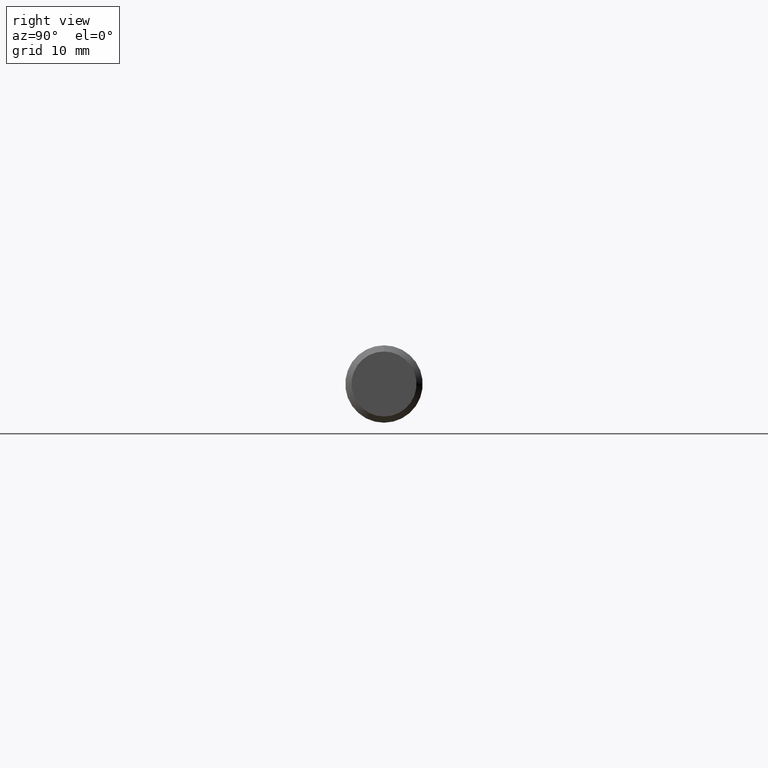
[diagram: clean part render]
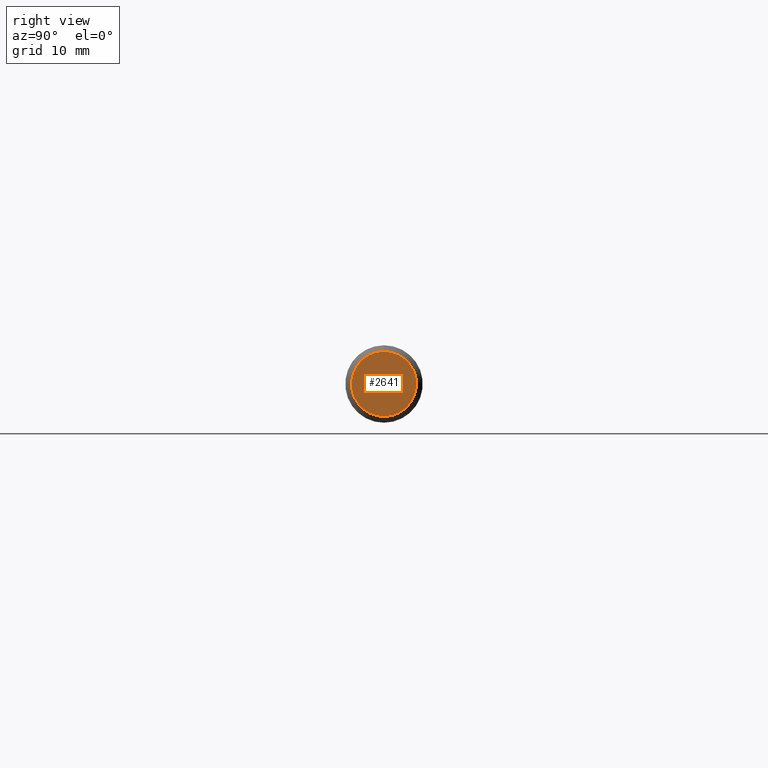
[diagram: same view with one face highlighted and labeled with its STEP entity id]
A machine part, right view. The second image highlights one B-rep face of the part: STEP entity #2641.
In plain terms, the highlighted planar face has unit normal (1, 0, 0).
Its self-contained STEP definition (entity closure, byte-faithful):
#41 = CARTESIAN_POINT ( 'NONE',  ( 1.999999999999999778, 2.110678758330449273E-17, -0.1573499999999976862 ) ) ;
#150 = CARTESIAN_POINT ( 'NONE',  ( 1.999999999999999778, 0.0000000000000000000, 0.1573499999999976862 ) ) ;
#165 = CARTESIAN_POINT ( 'NONE',  ( 1.999999999999999778, 0.0000000000000000000, 0.0000000000000000000 ) ) ;
#174 = CIRCLE ( 'NONE', #1778, 0.1573499999999976862 ) ;
#621 = CARTESIAN_POINT ( 'NONE',  ( 1.999999999999999778, 0.0000000000000000000, 0.0000000000000000000 ) ) ;
#635 = DIRECTION ( 'NONE',  ( 1.000000000000000000, 0.0000000000000000000, 0.0000000000000000000 ) ) ;
#793 = AXIS2_PLACEMENT_3D ( 'NONE', #2126, #635, #845 ) ;
#845 = DIRECTION ( 'NONE',  ( 0.0000000000000000000, 0.0000000000000000000, -1.000000000000000000 ) ) ;
#958 = ORIENTED_EDGE ( 'NONE', *, *, #1607, .T. ) ;
#1576 = EDGE_LOOP ( 'NONE', ( #2362, #958 ) ) ;
#1607 = EDGE_CURVE ( 'NONE', #1826, #1677, #174, .T. ) ;
#1677 = VERTEX_POINT ( 'NONE', #150 ) ;
#1778 = AXIS2_PLACEMENT_3D ( 'NONE', #165, #2044, #2275 ) ;
#1826 = VERTEX_POINT ( 'NONE', #41 ) ;
#1863 = DIRECTION ( 'NONE',  ( 1.000000000000000000, 0.0000000000000000000, 0.0000000000000000000 ) ) ;
#1943 = CIRCLE ( 'NONE', #2608, 0.1573499999999976862 ) ;
#2037 = DIRECTION ( 'NONE',  ( 0.0000000000000000000, 0.0000000000000000000, -1.000000000000000000 ) ) ;
#2044 = DIRECTION ( 'NONE',  ( 1.000000000000000000, 0.0000000000000000000, 0.0000000000000000000 ) ) ;
#2126 = CARTESIAN_POINT ( 'NONE',  ( 1.999999999999999778, -0.1873499999999999888, 0.0000000000000000000 ) ) ;
#2275 = DIRECTION ( 'NONE',  ( 0.0000000000000000000, 0.0000000000000000000, -1.000000000000000000 ) ) ;
#2362 = ORIENTED_EDGE ( 'NONE', *, *, #2544, .T. ) ;
#2458 = PLANE ( 'NONE',  #793 ) ;
#2544 = EDGE_CURVE ( 'NONE', #1677, #1826, #1943, .T. ) ;
#2563 = FACE_OUTER_BOUND ( 'NONE', #1576, .T. ) ;
#2608 = AXIS2_PLACEMENT_3D ( 'NONE', #621, #1863, #2037 ) ;
#2641 = ADVANCED_FACE ( 'NONE', ( #2563 ), #2458, .T. ) ;